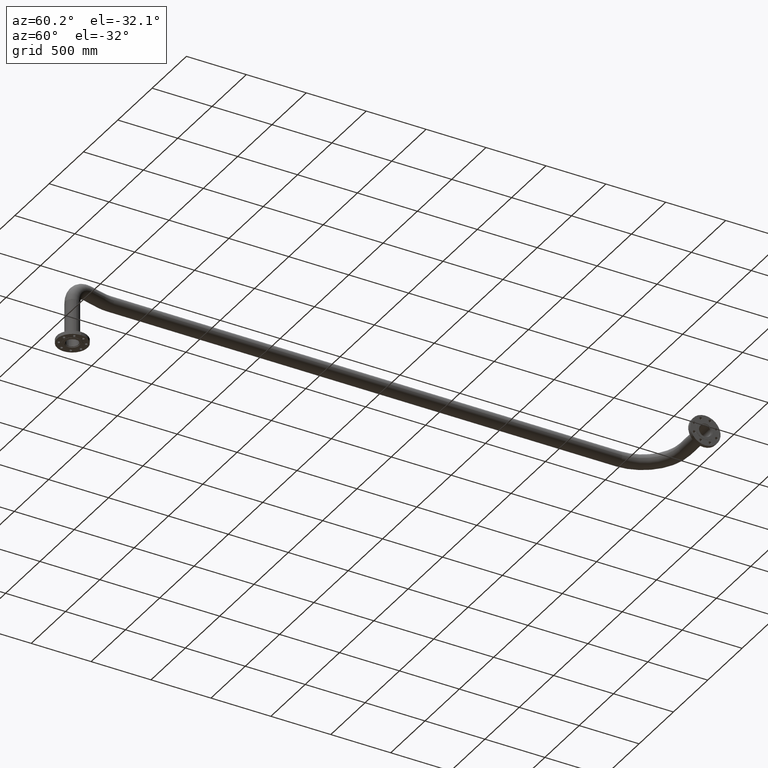
[diagram: clean part render]
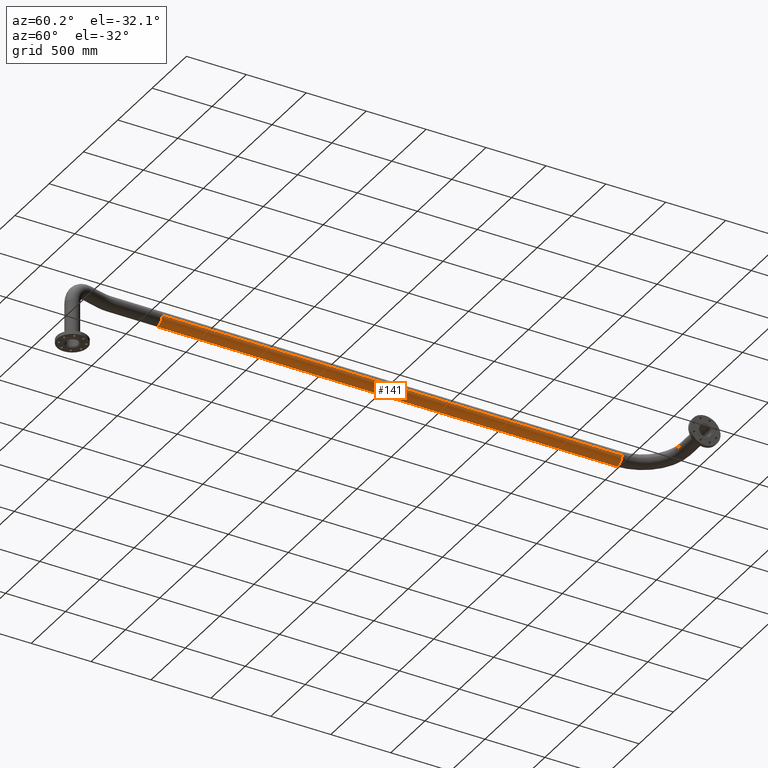
[diagram: same view with one face highlighted and labeled with its STEP entity id]
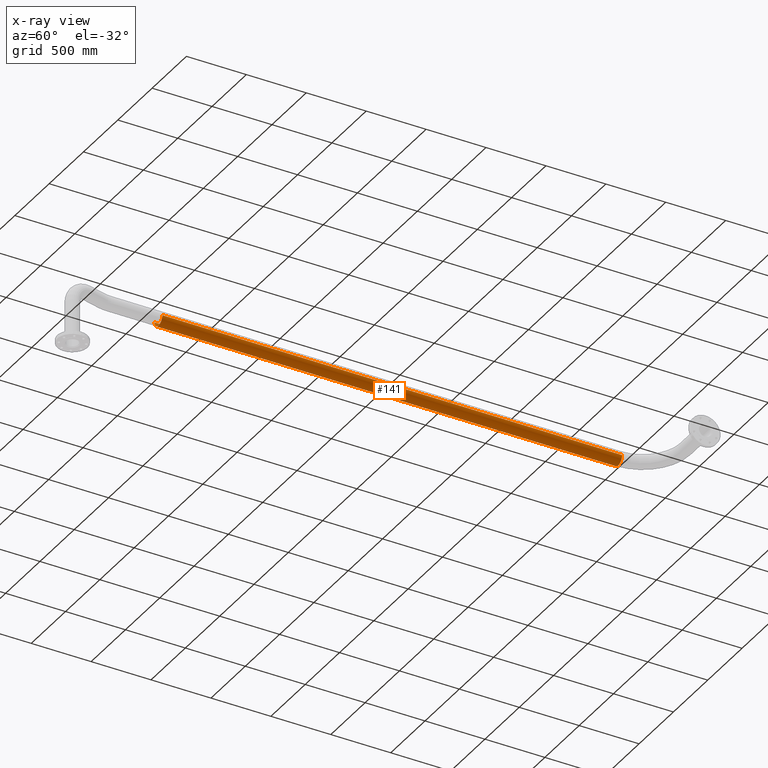
[diagram: x-ray of the same camera — body ghosted, the highlighted face saturated]
A machine part, auxiliary view. The second image highlights one B-rep face of the part: STEP entity #141.
The next image is the same camera in x-ray: the body ghosted, the highlighted face saturated — about 0% of this face is hidden behind the body in this view.
In plain terms, the highlighted cylindrical surface (edge-blend (fillet) strip) has radius 57.15 mm, axis along (-0, -1, 0).
Its self-contained STEP definition (entity closure, byte-faithful):
#4 = VERTEX_POINT ( 'NONE', #182 ) ;
#26 = CIRCLE ( 'NONE', #2301, 57.14999999999941593 ) ;
#93 = CARTESIAN_POINT ( 'NONE',  ( -878.9999999999913598, -7.095881093008508389E-13, 3.491521026390923018E-12 ) ) ;
#115 = DIRECTION ( 'NONE',  ( 0.000000000000000000, -1.725417552976858784E-30, 1.000000000000000000 ) ) ;
#141 = ADVANCED_FACE ( 'NONE', ( #836 ), #1280, .T. ) ;
#144 = CARTESIAN_POINT ( 'NONE',  ( -4715.999999999966349, 57.15000000000000568, 6.436930457737444426E-28 ) ) ;
#146 = LINE ( 'NONE', #1278, #1848 ) ;
#182 = CARTESIAN_POINT ( 'NONE',  ( -4715.999999999966349, 57.15000000000000568, 4.332677809523325907E-27 ) ) ;
#279 = EDGE_LOOP ( 'NONE', ( #1642, #1644, #537, #2375 ) ) ;
#282 = VERTEX_POINT ( 'NONE', #1973 ) ;
#373 = CARTESIAN_POINT ( 'NONE',  ( -4715.999999999966349, 3.165684441250805020E-15, 7.888609052210118054E-28 ) ) ;
#408 = EDGE_CURVE ( 'NONE', #4, #1993, #1865, .T. ) ;
#445 = CIRCLE ( 'NONE', #2160, 57.15000000000000568 ) ;
#517 = DIRECTION ( 'NONE',  ( 1.000000000000000000, -6.712647246081559806E-19, 1.922848456476224333E-30 ) ) ;
#537 = ORIENTED_EDGE ( 'NONE', *, *, #2237, .F. ) ;
#612 = DIRECTION ( 'NONE',  ( -1.000000000000000000, 6.712647246081559806E-19, -1.922848456476224333E-30 ) ) ;
#836 = FACE_OUTER_BOUND ( 'NONE', #279, .T. ) ;
#1071 = DIRECTION ( 'NONE',  ( 1.000000000000000000, -6.712647246081559806E-19, 1.922848456476224333E-30 ) ) ;
#1170 = AXIS2_PLACEMENT_3D ( 'NONE', #2142, #1071, #1501 ) ;
#1190 = VERTEX_POINT ( 'NONE', #2000 ) ;
#1205 = DIRECTION ( 'NONE',  ( 1.000000000000000000, -2.937152324995789343E-16, 3.802846950569492801E-16 ) ) ;
#1278 = CARTESIAN_POINT ( 'NONE',  ( -4715.999999999966349, -57.15000000000000568, 6.998856457128028165E-15 ) ) ;
#1280 = CYLINDRICAL_SURFACE ( 'NONE', #1170, 57.15000000000000568 ) ;
#1501 = DIRECTION ( 'NONE',  ( 0.000000000000000000, 1.000000000000000000, -2.540120025324012343E-30 ) ) ;
#1543 = EDGE_CURVE ( 'NONE', #282, #4, #445, .T. ) ;
#1642 = ORIENTED_EDGE ( 'NONE', *, *, #1543, .F. ) ;
#1644 = ORIENTED_EDGE ( 'NONE', *, *, #2296, .T. ) ;
#1848 = VECTOR ( 'NONE', #2774, 1000.000000000000000 ) ;
#1865 = LINE ( 'NONE', #144, #2345 ) ;
#1973 = CARTESIAN_POINT ( 'NONE',  ( -4715.999999999966349, -57.15000000000000568, 6.998856457131718456E-15 ) ) ;
#1991 = CARTESIAN_POINT ( 'NONE',  ( -878.9999999999913598, 57.14999999999920277, 1.222734403092568298E-26 ) ) ;
#1993 = VERTEX_POINT ( 'NONE', #1991 ) ;
#2000 = CARTESIAN_POINT ( 'NONE',  ( -878.9999999999913598, -57.15000000000062386, 6.998856457096028811E-15 ) ) ;
#2107 = DIRECTION ( 'NONE',  ( 0.000000000000000000, -1.000000000000000000, 2.540120025324013745E-30 ) ) ;
#2142 = CARTESIAN_POINT ( 'NONE',  ( -4715.999999999966349, 3.165684441250805020E-15, 7.888609052210118054E-28 ) ) ;
#2160 = AXIS2_PLACEMENT_3D ( 'NONE', #373, #612, #2107 ) ;
#2237 = EDGE_CURVE ( 'NONE', #1993, #1190, #26, .T. ) ;
#2296 = EDGE_CURVE ( 'NONE', #282, #1190, #146, .T. ) ;
#2301 = AXIS2_PLACEMENT_3D ( 'NONE', #93, #1205, #115 ) ;
#2345 = VECTOR ( 'NONE', #517, 1000.000000000000000 ) ;
#2375 = ORIENTED_EDGE ( 'NONE', *, *, #408, .F. ) ;
#2774 = DIRECTION ( 'NONE',  ( 1.000000000000000000, -6.712647246081559806E-19, 1.922848456476224333E-30 ) ) ;